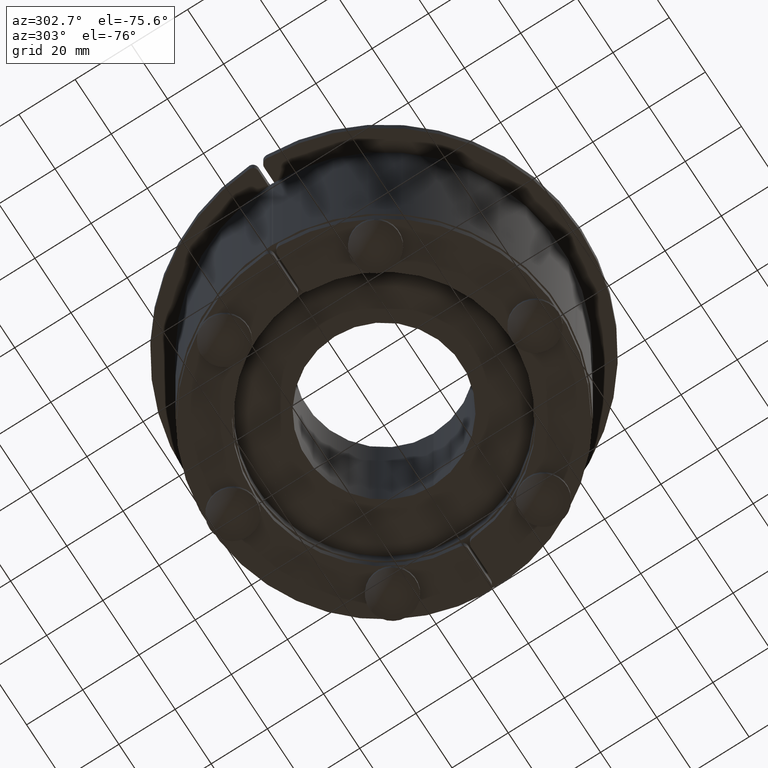
[diagram: clean part render]
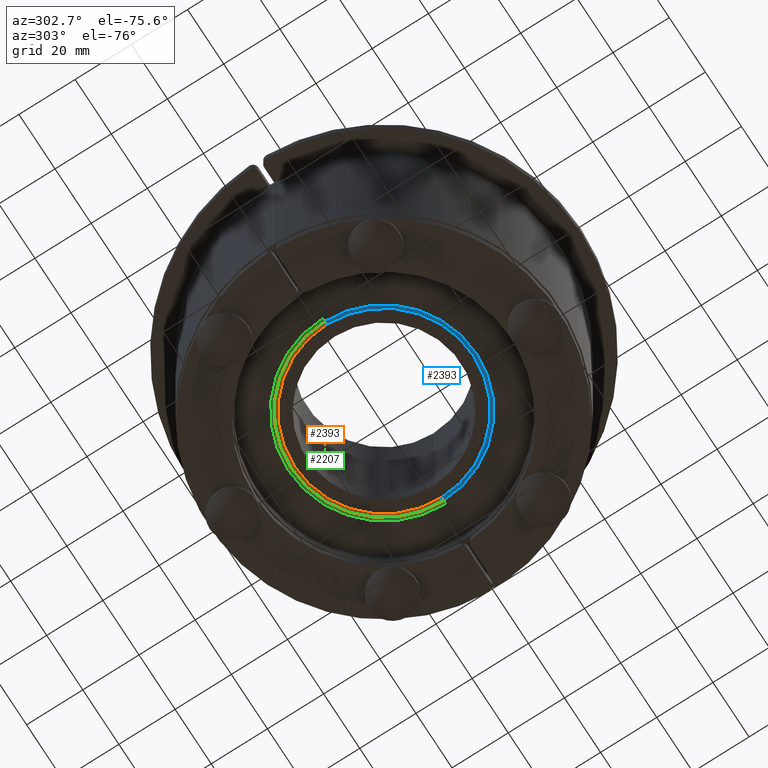
[diagram: same view with three faces highlighted in distinct colors, each labeled with its STEP entity id]
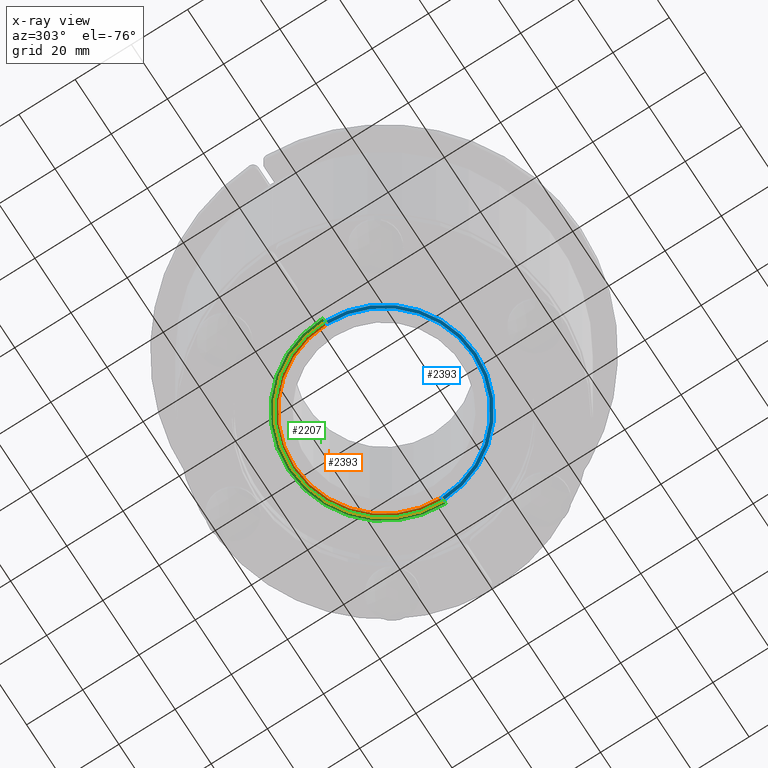
[diagram: x-ray of the same camera — body ghosted, the three highlighted faces saturated]
A machine part, auxiliary view with three faces highlighted in distinct colors.
The next image is the same camera in x-ray (body ghosted, the three faces saturated) — at least one of them is partly hidden behind the body in this view.
Their STEP definitions:

[orange] entity #2393 — the highlighted planar face has unit normal (0, 0, -1).
#2269=CARTESIAN_POINT('',(-31.799999999999997,0.0,63.000000000000007));
#2270=VERTEX_POINT('',#2269);
#2277=CARTESIAN_POINT('',(-32.899999999999999,0.0,63.000000000000007));
#2278=VERTEX_POINT('',#2277);
#2279=CARTESIAN_POINT('',(-32.899999999999999,0.0,63.000000000000007));
#2280=DIRECTION('',(1.0,0.0,0.0));
#2281=VECTOR('',#2280,1.100000000000001);
#2282=LINE('',#2279,#2281);
#2283=EDGE_CURVE('',#2278,#2270,#2282,.T.);
#2309=CARTESIAN_POINT('',(32.899999999999999,0.0,63.000000000000007));
#2310=VERTEX_POINT('',#2309);
#2311=CARTESIAN_POINT('',(0.0,0.0,63.000000000000007));
#2312=DIRECTION('',(0.0,0.0,1.0));
#2313=DIRECTION('',(1.0,0.0,0.0));
#2314=AXIS2_PLACEMENT_3D('',#2311,#2312,#2313);
#2315=CIRCLE('',#2314,32.899999999999999);
#2316=EDGE_CURVE('',#2310,#2278,#2315,.T.);
#2341=CARTESIAN_POINT('',(31.799999999999997,0.0,63.000000000000007));
#2342=VERTEX_POINT('',#2341);
#2343=CARTESIAN_POINT('',(31.799999999999997,0.0,63.000000000000007));
#2344=DIRECTION('',(1.0,0.0,0.0));
#2345=VECTOR('',#2344,1.100000000000001);
#2346=LINE('',#2343,#2345);
#2347=EDGE_CURVE('',#2342,#2310,#2346,.T.);
#2371=CARTESIAN_POINT('',(0.0,0.0,63.000000000000007));
#2372=DIRECTION('',(0.0,0.0,-1.0));
#2373=DIRECTION('',(-1.0,0.0,0.0));
#2374=AXIS2_PLACEMENT_3D('',#2371,#2372,#2373);
#2375=CIRCLE('',#2374,31.799999999999997);
#2376=EDGE_CURVE('',#2270,#2342,#2375,.T.);
#2382=CARTESIAN_POINT('',(-1.076870E-016,20.307705651554254,63.000000000000007));
#2383=DIRECTION('',(0.0,0.0,1.0));
#2384=DIRECTION('',(1.0,0.0,0.0));
#2385=AXIS2_PLACEMENT_3D('',#2382,#2383,#2384);
#2386=PLANE('',#2385);
#2387=ORIENTED_EDGE('',*,*,#2376,.T.);
#2388=ORIENTED_EDGE('',*,*,#2347,.T.);
#2389=ORIENTED_EDGE('',*,*,#2316,.T.);
#2390=ORIENTED_EDGE('',*,*,#2283,.T.);
#2391=EDGE_LOOP('',(#2387,#2388,#2389,#2390));
#2392=FACE_OUTER_BOUND('',#2391,.T.);
#2393=ADVANCED_FACE('',(#2392),#2386,.T.);

[blue] entity #2393 — the highlighted planar face has unit normal (0, 0, -1).
#2269=CARTESIAN_POINT('',(-31.799999999999997,0.0,63.000000000000007));
#2270=VERTEX_POINT('',#2269);
#2277=CARTESIAN_POINT('',(-32.899999999999999,0.0,63.000000000000007));
#2278=VERTEX_POINT('',#2277);
#2279=CARTESIAN_POINT('',(-32.899999999999999,0.0,63.000000000000007));
#2280=DIRECTION('',(1.0,0.0,0.0));
#2281=VECTOR('',#2280,1.100000000000001);
#2282=LINE('',#2279,#2281);
#2283=EDGE_CURVE('',#2278,#2270,#2282,.T.);
#2309=CARTESIAN_POINT('',(32.899999999999999,0.0,63.000000000000007));
#2310=VERTEX_POINT('',#2309);
#2311=CARTESIAN_POINT('',(0.0,0.0,63.000000000000007));
#2312=DIRECTION('',(0.0,0.0,1.0));
#2313=DIRECTION('',(1.0,0.0,0.0));
#2314=AXIS2_PLACEMENT_3D('',#2311,#2312,#2313);
#2315=CIRCLE('',#2314,32.899999999999999);
#2316=EDGE_CURVE('',#2310,#2278,#2315,.T.);
#2341=CARTESIAN_POINT('',(31.799999999999997,0.0,63.000000000000007));
#2342=VERTEX_POINT('',#2341);
#2343=CARTESIAN_POINT('',(31.799999999999997,0.0,63.000000000000007));
#2344=DIRECTION('',(1.0,0.0,0.0));
#2345=VECTOR('',#2344,1.100000000000001);
#2346=LINE('',#2343,#2345);
#2347=EDGE_CURVE('',#2342,#2310,#2346,.T.);
#2371=CARTESIAN_POINT('',(0.0,0.0,63.000000000000007));
#2372=DIRECTION('',(0.0,0.0,-1.0));
#2373=DIRECTION('',(-1.0,0.0,0.0));
#2374=AXIS2_PLACEMENT_3D('',#2371,#2372,#2373);
#2375=CIRCLE('',#2374,31.799999999999997);
#2376=EDGE_CURVE('',#2270,#2342,#2375,.T.);
#2382=CARTESIAN_POINT('',(-1.076870E-016,20.307705651554254,63.000000000000007));
#2383=DIRECTION('',(0.0,0.0,1.0));
#2384=DIRECTION('',(1.0,0.0,0.0));
#2385=AXIS2_PLACEMENT_3D('',#2382,#2383,#2384);
#2386=PLANE('',#2385);
#2387=ORIENTED_EDGE('',*,*,#2376,.T.);
#2388=ORIENTED_EDGE('',*,*,#2347,.T.);
#2389=ORIENTED_EDGE('',*,*,#2316,.T.);
#2390=ORIENTED_EDGE('',*,*,#2283,.T.);
#2391=EDGE_LOOP('',(#2387,#2388,#2389,#2390));
#2392=FACE_OUTER_BOUND('',#2391,.T.);
#2393=ADVANCED_FACE('',(#2392),#2386,.T.);

[green] entity #2207 — the highlighted planar face has unit normal (0, 0, -1).
#2084=CARTESIAN_POINT('',(-34.0,0.0,63.000000000000007));
#2085=VERTEX_POINT('',#2084);
#2092=CARTESIAN_POINT('',(34.0,0.0,63.000000000000007));
#2093=VERTEX_POINT('',#2092);
#2094=CARTESIAN_POINT('',(0.0,0.0,63.000000000000007));
#2095=DIRECTION('',(0.0,0.0,1.0));
#2096=DIRECTION('',(1.0,0.0,0.0));
#2097=AXIS2_PLACEMENT_3D('',#2094,#2095,#2096);
#2098=CIRCLE('',#2097,34.0);
#2099=EDGE_CURVE('',#2093,#2085,#2098,.T.);
#2124=CARTESIAN_POINT('',(32.899999999999999,0.0,63.000000000000007));
#2125=VERTEX_POINT('',#2124);
#2126=CARTESIAN_POINT('',(32.899999999999999,0.0,63.000000000000007));
#2127=DIRECTION('',(1.0,0.0,0.0));
#2128=VECTOR('',#2127,1.100000000000001);
#2129=LINE('',#2126,#2128);
#2130=EDGE_CURVE('',#2125,#2093,#2129,.T.);
#2156=CARTESIAN_POINT('',(-32.899999999999999,0.0,63.000000000000007));
#2157=VERTEX_POINT('',#2156);
#2158=CARTESIAN_POINT('',(0.0,0.0,63.000000000000007));
#2159=DIRECTION('',(0.0,0.0,-1.0));
#2160=DIRECTION('',(-1.0,0.0,0.0));
#2161=AXIS2_PLACEMENT_3D('',#2158,#2159,#2160);
#2162=CIRCLE('',#2161,32.899999999999999);
#2163=EDGE_CURVE('',#2157,#2125,#2162,.T.);
#2186=CARTESIAN_POINT('',(-34.0,0.0,63.000000000000007));
#2187=DIRECTION('',(1.0,0.0,0.0));
#2188=VECTOR('',#2187,1.100000000000001);
#2189=LINE('',#2186,#2188);
#2190=EDGE_CURVE('',#2085,#2157,#2189,.T.);
#2196=CARTESIAN_POINT('',(8.628198E-016,21.00766575997369,63.000000000000007));
#2197=DIRECTION('',(0.0,0.0,1.0));
#2198=DIRECTION('',(1.0,0.0,0.0));
#2199=AXIS2_PLACEMENT_3D('',#2196,#2197,#2198);
#2200=PLANE('',#2199);
#2201=ORIENTED_EDGE('',*,*,#2190,.T.);
#2202=ORIENTED_EDGE('',*,*,#2163,.T.);
#2203=ORIENTED_EDGE('',*,*,#2130,.T.);
#2204=ORIENTED_EDGE('',*,*,#2099,.T.);
#2205=EDGE_LOOP('',(#2201,#2202,#2203,#2204));
#2206=FACE_OUTER_BOUND('',#2205,.T.);
#2207=ADVANCED_FACE('',(#2206),#2200,.T.);